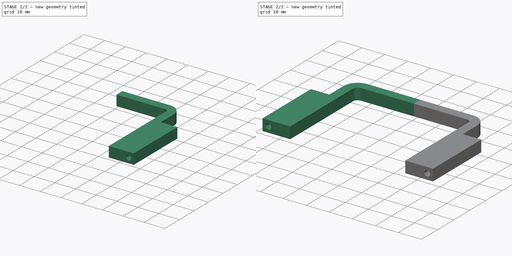
[diagram: build sequence overview — one tinted view per stage of 2, left to right]
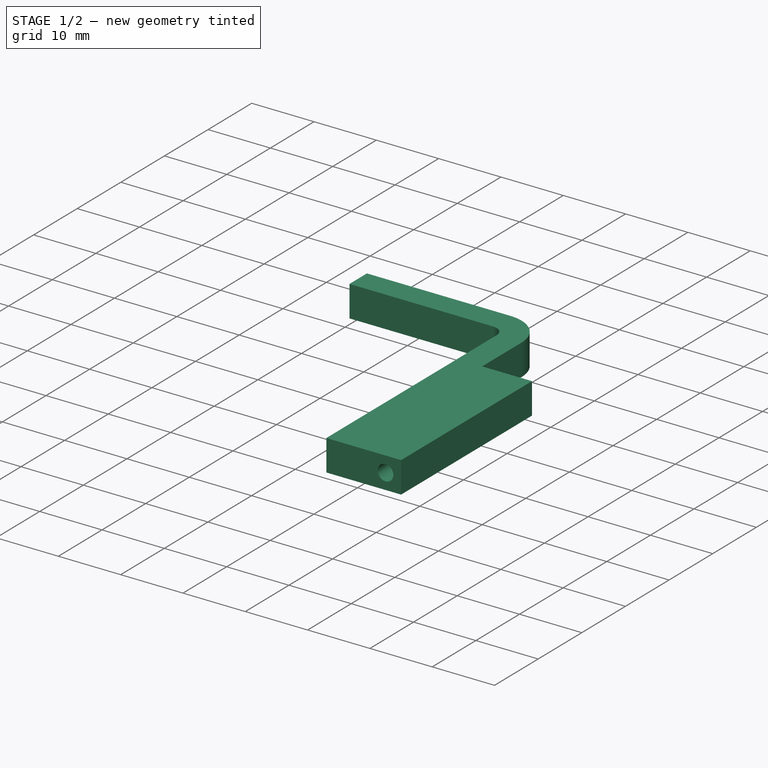
[diagram: stage 1 of 2 — iso view after this stage's code; geometry added in this stage tinted green]
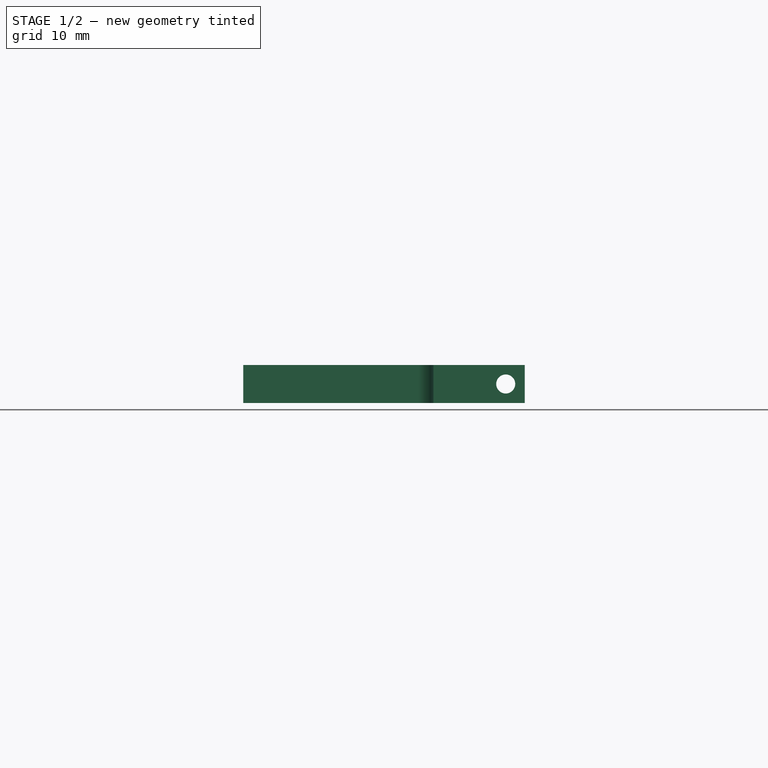
[diagram: stage 1 of 2 — front view after this stage's code; geometry added in this stage tinted green]
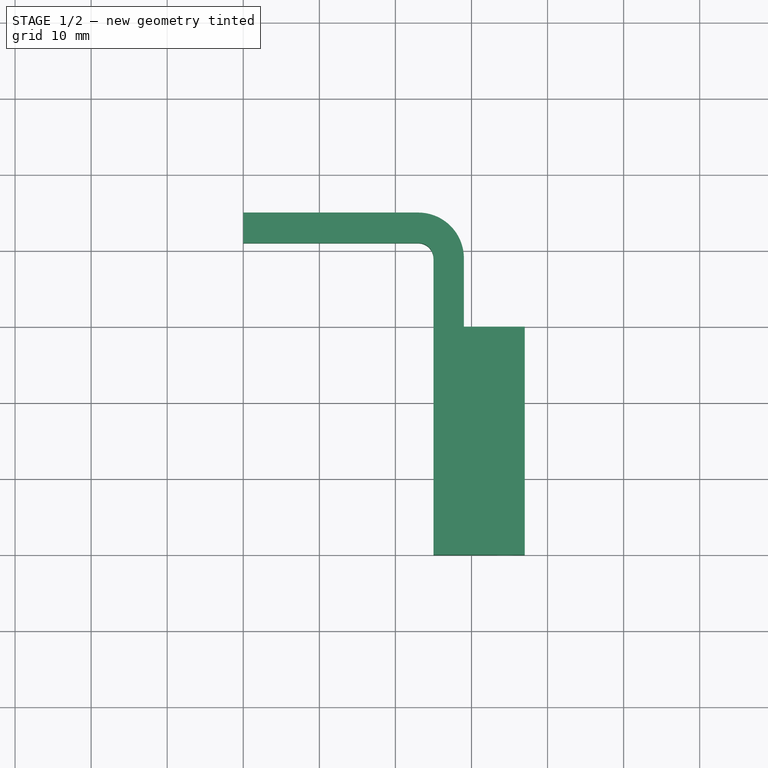
[diagram: stage 1 of 2 — top view after this stage's code; geometry added in this stage tinted green]
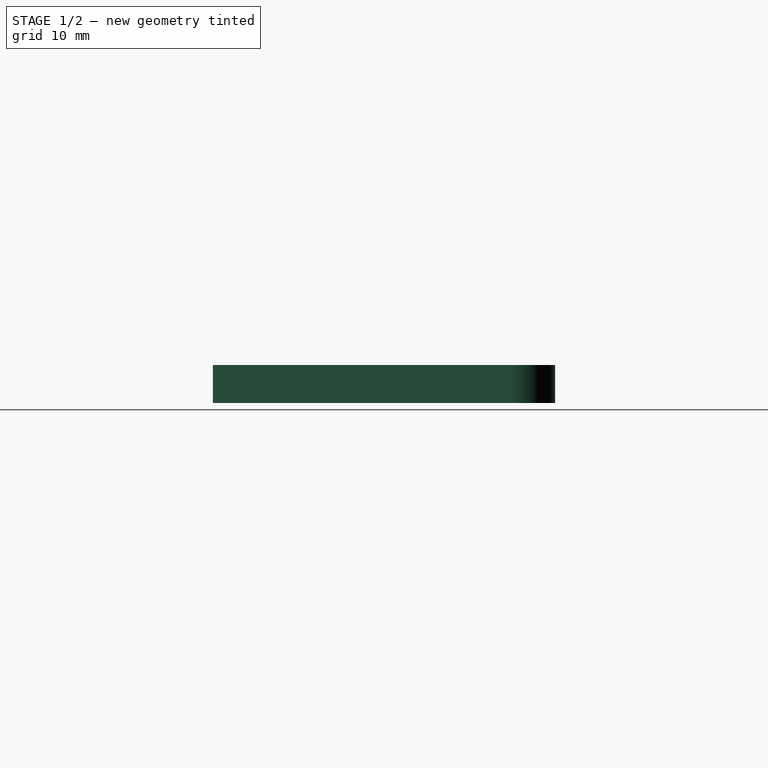
[diagram: stage 1 of 2 — right view after this stage's code; geometry added in this stage tinted green]
FCSTD DOCUMENT  (FreeCAD 1.0R39109 (Git))
Label: Universal Clamp
License: All rights reserved
LicenseURL: http://en.wikipedia.org/wiki/All_rights_reserved
objects: Sketcher::SketchObject×2, Spreadsheet::Sheet×1, PartDesign::Pad×1, PartDesign::Pocket×1, PartDesign::Mirrored×1, PartDesign::Body×1
note: 13 computed .brp shape members not serialized (recipe doc carries the construction recipe); baked Part::Feature solids carry a one-line shape summary decoded from their .brp

FEATURE [Sketcher::SketchObject] Sketch
  ArcFitTolerance = 1e-06
  AttachmentSupport = -> [XY_Plane]
  FullyConstrained = true
  MakeInternals = false
  MapMode = 5
  expr: Constraints[25] = Spreadsheet.inner_radius
  expr: Constraints[26] = Spreadsheet.clamp_thickness
  expr: Constraints[27] = Spreadsheet.object_height
  expr: Constraints[28] = Spreadsheet.object_width / 2
  expr: Constraints[29] = Spreadsheet.nail_support_height
  expr: Constraints[30] = Spreadsheet.nail_support_width
  sketch-geometry (10):
    g0: LineSegment StartX=0 StartY=41 StartZ=0 EndX=23 EndY=41 EndZ=0
    g1: LineSegment StartX=0 StartY=45 StartZ=0 EndX=23 EndY=45 EndZ=0
    g2: LineSegment StartX=25 StartY=39 StartZ=0 EndX=25 EndY=0 EndZ=0
    g3: ArcOfCircle CenterX=23 CenterY=39 CenterZ=0 NormalX=0 NormalY=0 NormalZ=1 AngleXU=0 Radius=2 StartAngle=0 EndAngle=1.5708
    g4: ArcOfCircle CenterX=23 CenterY=39 CenterZ=0 NormalX=0 NormalY=0 NormalZ=1 AngleXU=0 Radius=6 StartAngle=0 EndAngle=1.5708
    g5: LineSegment StartX=0 StartY=45 StartZ=0 EndX=0 EndY=41 EndZ=0
    g6: LineSegment StartX=25 StartY=0 StartZ=0 EndX=37 EndY=0 EndZ=0
    g7: LineSegment StartX=29 StartY=39 StartZ=0 EndX=29 EndY=30 EndZ=0
    g8: LineSegment StartX=29 StartY=30 StartZ=0 EndX=37 EndY=30 EndZ=0
    g9: LineSegment StartX=37 StartY=30 StartZ=0 EndX=37 EndY=0 EndZ=0
  constraints (31):
    c: PointOnObject(g0,g-2)
    c: Horizontal(g0)
    c: PointOnObject(g1,g-2)
    c: Horizontal(g1)
    c: PointOnObject(g2,g-1)
    c: Vertical(g2)
    c: Coincident(g3,g0)
    c: Coincident(g3,g2)
    c: Coincident(g4,g3)
    c: Coincident(g4,g1)
    c: Coincident(g5,g1)
    c: Coincident(g5,g0)
    c: Vertical(g3,g0)
    c: Vertical(g3,g1)
    c: Horizontal(g3,g2)
    c: Horizontal(g3,g4)
    c: Coincident(g6,g2)
    c: PointOnObject(g6,g-1)
    c: Coincident(g7,g4)
    c: Vertical(g7)
    c: Coincident(g8,g7)
    c: Horizontal(g8)
    c: Coincident(g9,g8)
    c: Coincident(g9,g6)
    c: Vertical(g9)
    c: Radius(g3) = 2
    c: DistanceY(g0,g1) = 4
    c: DistanceY(g-1,g0) = 41
    c: DistanceX(g-1,g2) = 25
    c: DistanceY(g9,g9) = 30
    c: DistanceX(g8,g8) = 8
FEATURE [Spreadsheet::Sheet] Spreadsheet
  cells = A1='object_width; B1(object_width)=50; A2='object_height; B2(object_height)=41; A3='nail_support_height; B3(nail_support_height)=30; A4='nail_support_width; B4(nail_support_width)=8; A5='clamp_thickness; B5(clamp_thickness)=4; A6='inner_radius; B6(inner_radius)=2; A7='nail_diameter; B7(nail_diameter)=2.5; A8='clamp_width; B8(clamp_width)=5
FEATURE [PartDesign::Pad] Pad
  Direction = (0,0,1)
  Length = 5
  Length2 = 10
  Profile = -> Sketch
  ReferenceAxis = -> Sketch [N_Axis]
  Suppressed = false
  Type = 0
  expr: Length = Spreadsheet.clamp_width
FEATURE [Sketcher::SketchObject] Sketch001
  ArcFitTolerance = 1e-06
  AttachmentSupport = -> [Pad]
  FullyConstrained = true
  MakeInternals = false
  MapMode = 5
  Placement = pos=(0,30,0) rot=(0,0.707107,0.707107;3.14159rad)
  expr: Constraints[0] = Spreadsheet.nail_diameter
  expr: Constraints[1] = Spreadsheet.clamp_width / 2
  expr: Constraints[2] = Spreadsheet.object_width / 2 + Spreadsheet.clamp_thickness + Spreadsheet.nail_support_width - (Spreadsheet.nail_diameter / 2 + (Spreadsheet.clamp_width - Spreadsheet.nail_diameter) / 2)
  sketch-geometry (1):
    g0: Circle CenterX=-34.5 CenterY=2.5 CenterZ=0 NormalX=0 NormalY=0 NormalZ=1 AngleXU=0 Radius=1.25
  constraints (3):
    c: Diameter(g0) = 2.5
    c: DistanceY(g-1,g0) = 2.5
    c: DistanceX(g0,g-1) = 34.5
FEATURE [PartDesign::Pocket] Pocket
  BaseFeature = -> Pad
  Direction = (0,-1,2e-16)
  Length = 5
  Length2 = 5
  Profile = -> Sketch001
  ReferenceAxis = -> Sketch001 [N_Axis]
  Suppressed = false
  Type = 1
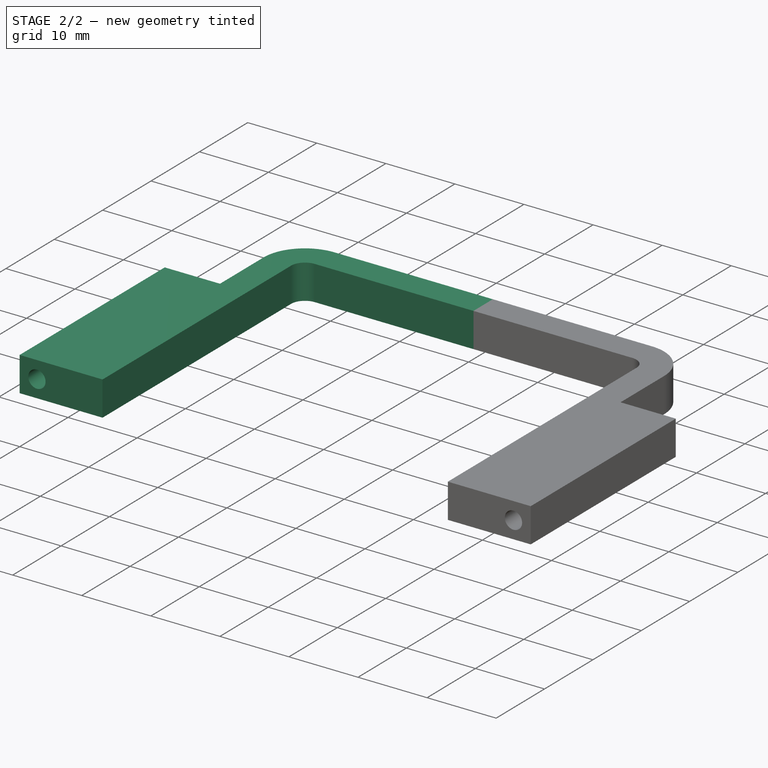
[diagram: stage 2 of 2 — iso view after this stage's code; geometry added in this stage tinted green]
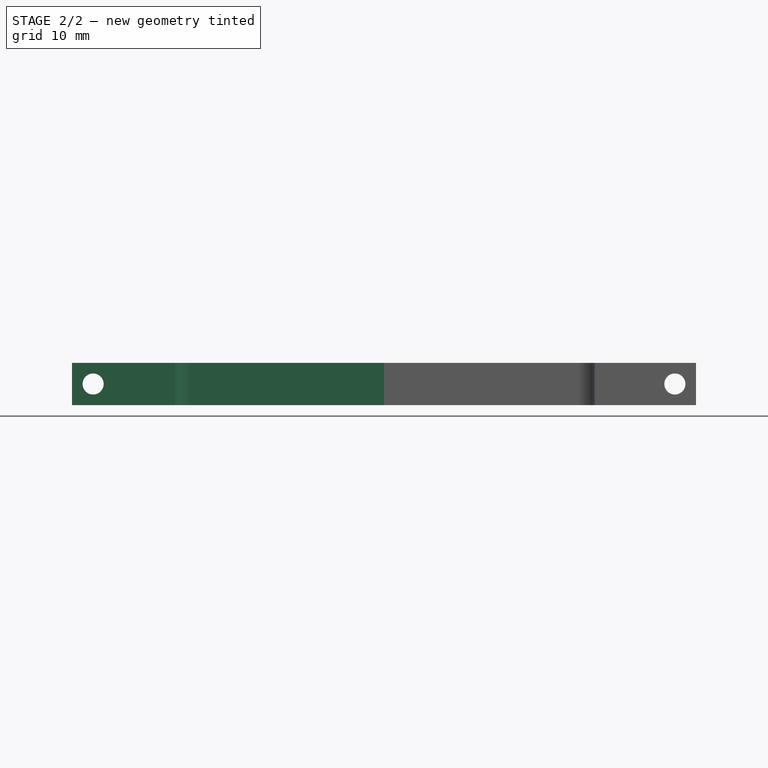
[diagram: stage 2 of 2 — front view after this stage's code; geometry added in this stage tinted green]
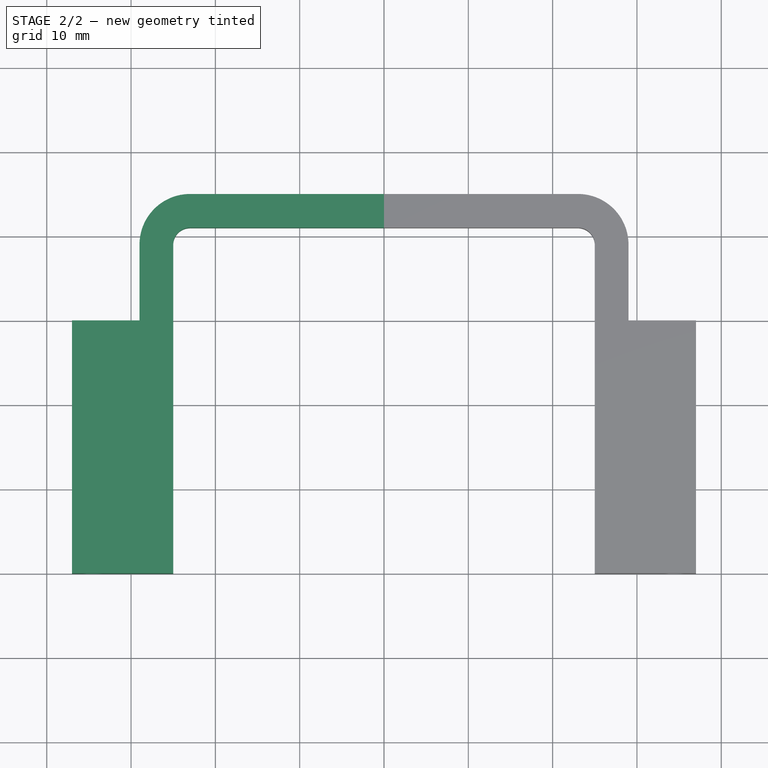
[diagram: stage 2 of 2 — top view after this stage's code; geometry added in this stage tinted green]
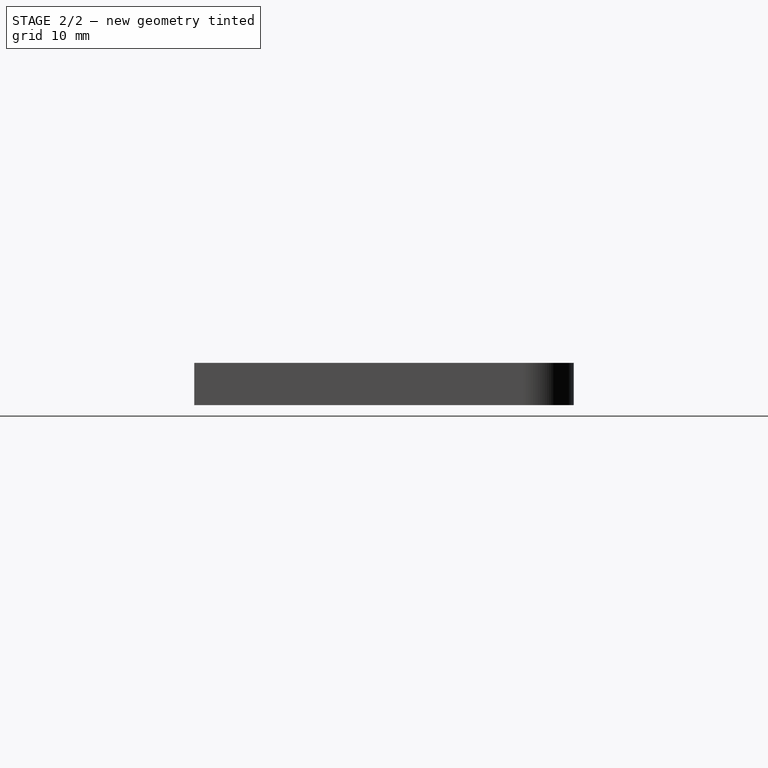
[diagram: stage 2 of 2 — right view after this stage's code; geometry added in this stage tinted green]
FEATURE [PartDesign::Mirrored] Mirrored
  BaseFeature = -> Pocket
  MirrorPlane = -> YZ_Plane
  Suppressed = false
  TransformMode = 1
FEATURE [PartDesign::Body] Body
  AllowCompound = false
  Group = -> [Sketch,Pad,Sketch001,Pocket,Mirrored]
  Origin = -> Origin
  Tip = -> Mirrored
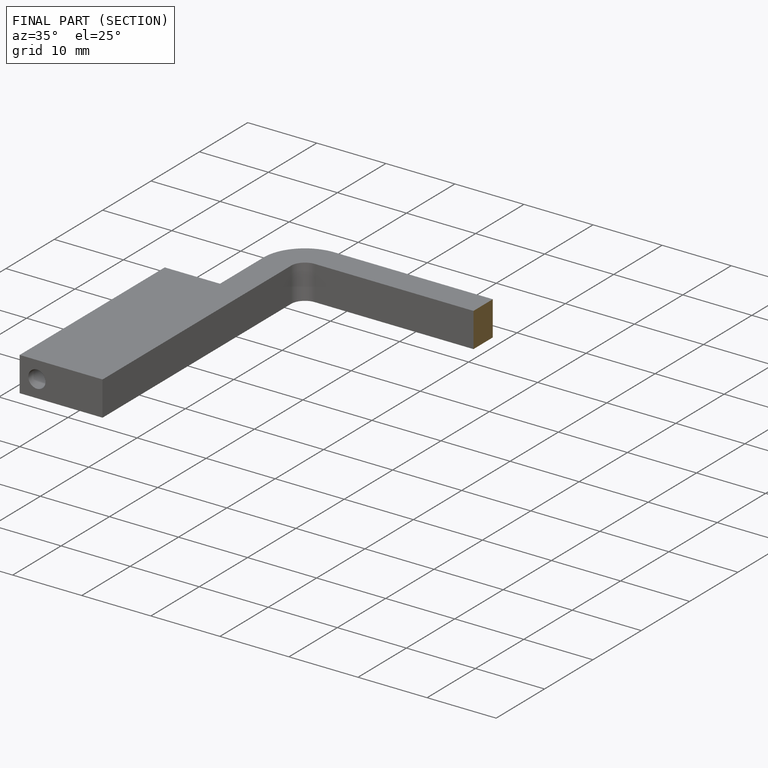
[diagram: finished part — half-section view (interior)]
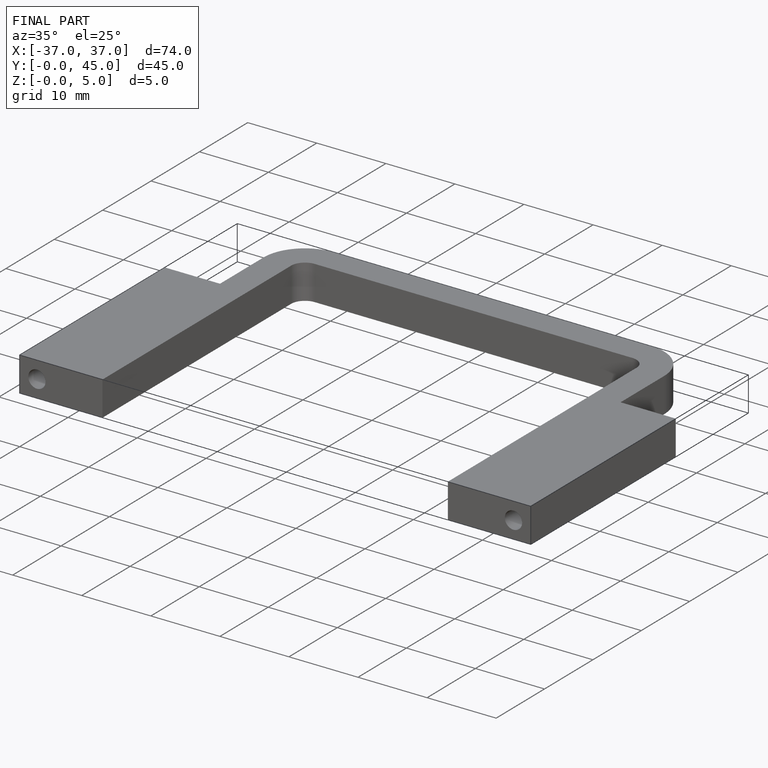
[diagram: finished part — iso view with bounding-box wireframe]
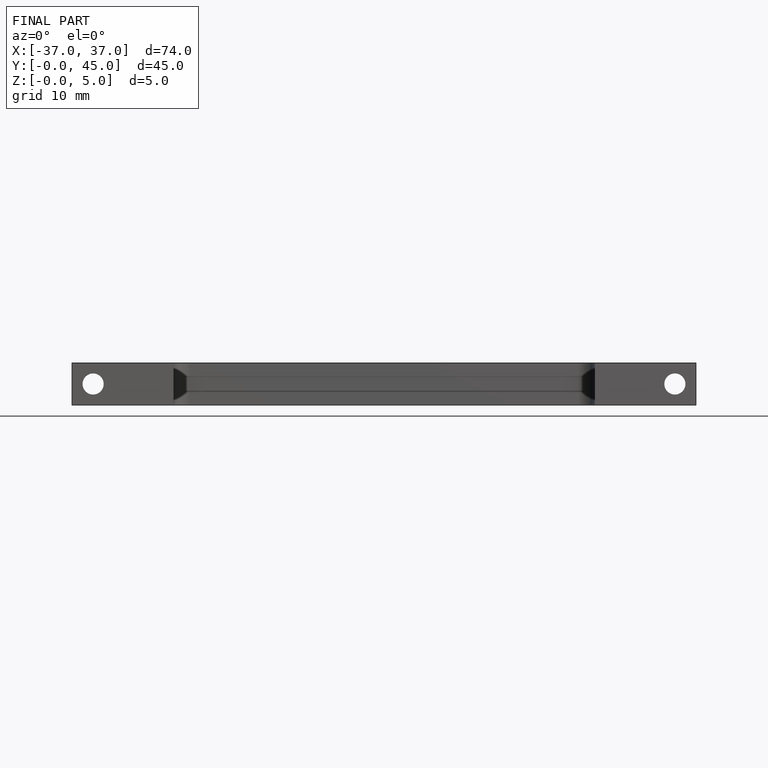
[diagram: finished part — front view with bounding-box wireframe]
